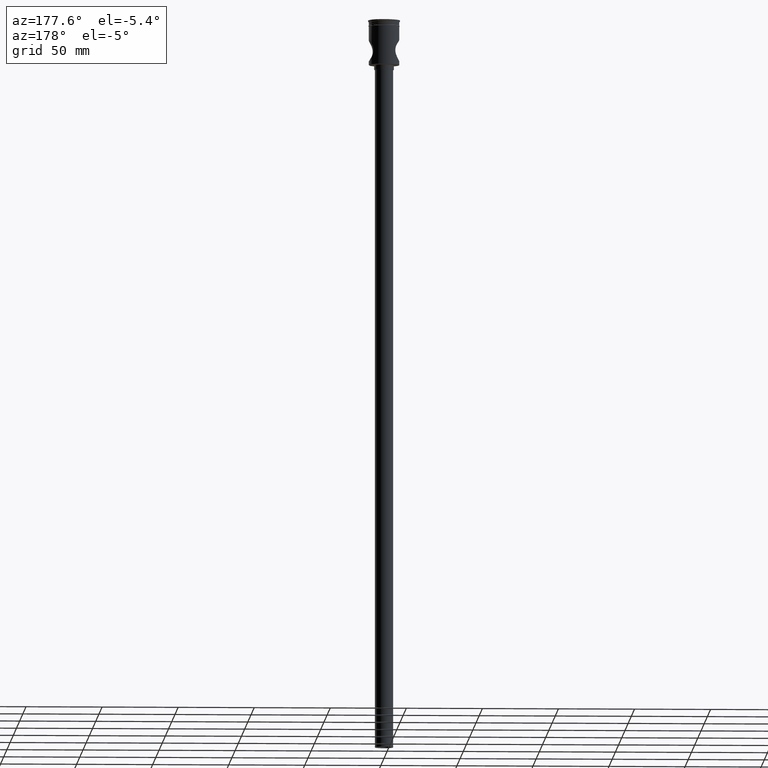
[diagram: clean part render]
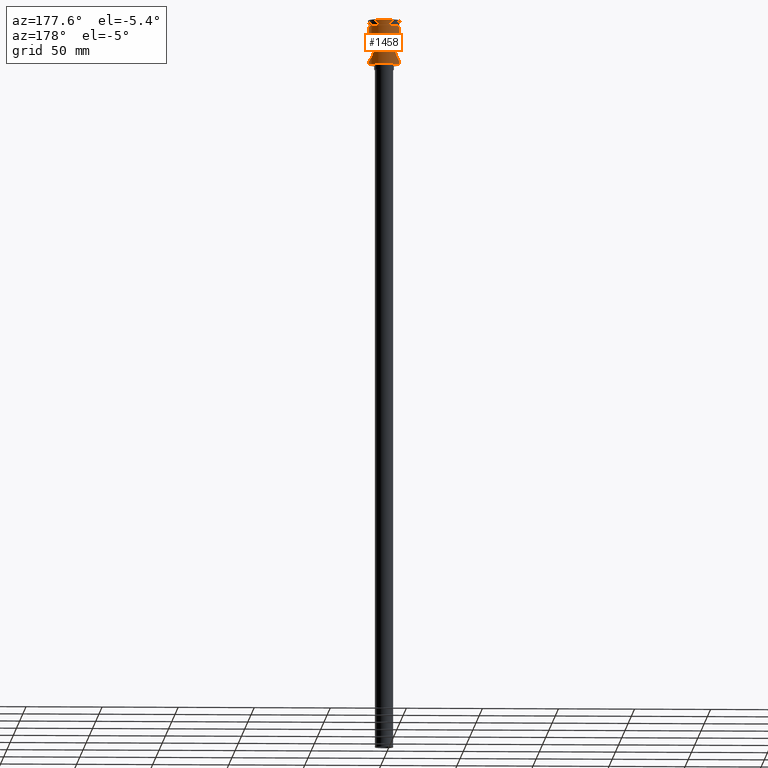
[diagram: same view with one face highlighted and labeled with its STEP entity id]
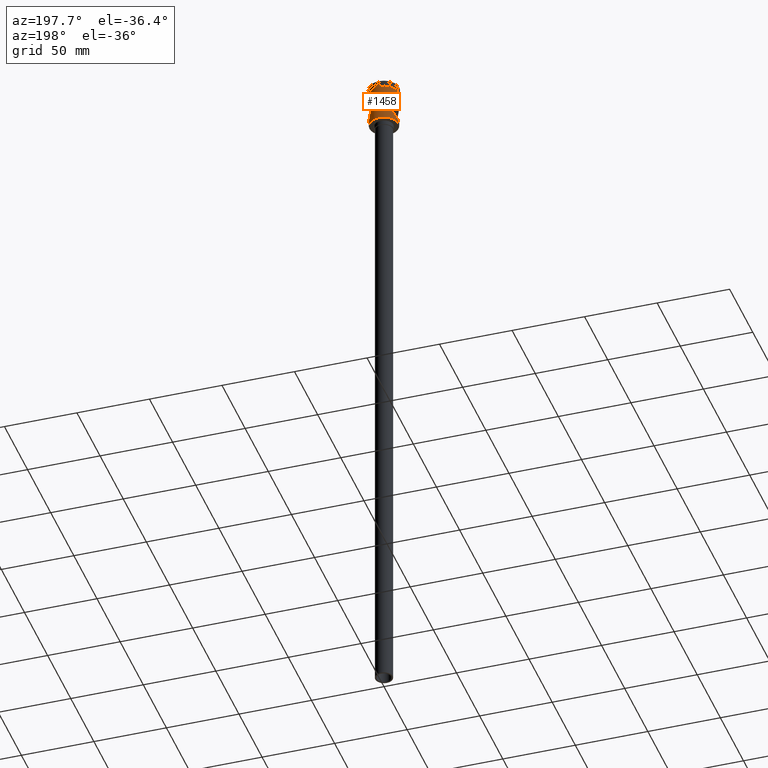
[diagram: same view with one face highlighted and labeled with its STEP entity id]
A machine part, auxiliary view. The second image highlights one B-rep face of the part: STEP entity #1458.
A second angle (auxiliary view) of the same face is appended — the face is thin or edge-on in the first view.
In plain terms, the highlighted cylindrical surface (edge-blend (fillet) strip) has radius 10 mm, axis along (-0, -0, 1).
Its self-contained STEP definition (entity closure, byte-faithful):
#10 = CARTESIAN_POINT ( 'NONE',  ( -9.999999999999994671, 1.224646799147352665E-15, -29.29999999999994387 ) ) ;
#15 = CARTESIAN_POINT ( 'NONE',  ( -9.999999999999996447, 0.000000000000000000, -27.00000000000000355 ) ) ;
#16 = CIRCLE ( 'NONE', #550, 9.999999999999998224 ) ;
#26 = CARTESIAN_POINT ( 'NONE',  ( 7.234464554488559962, 6.904114004842417884, -18.82145945963317857 ) ) ;
#51 = CARTESIAN_POINT ( 'NONE',  ( -9.991596185262174856, 0.4736682493084680701, -13.01198930438258117 ) ) ;
#58 = CARTESIAN_POINT ( 'NONE',  ( 9.485754788391535186, 3.172574074835096791, -13.75608760595409663 ) ) ;
#65 = CARTESIAN_POINT ( 'NONE',  ( 0.000000000000000000, 0.000000000000000000, 0.000000000000000000 ) ) ;
#81 = CARTESIAN_POINT ( 'NONE',  ( 9.999999999999994671, 0.000000000000000000, -29.29999999999994387 ) ) ;
#100 = CARTESIAN_POINT ( 'NONE',  ( -7.191763660842745765, 6.949507115151161152, -20.96152780032075569 ) ) ;
#108 = CARTESIAN_POINT ( 'NONE',  ( -7.796802139286405087, 6.263237125868982069, -16.86600156342442602 ) ) ;
#115 = EDGE_CURVE ( 'NONE', #1435, #184, #1477, .T. ) ;
#119 = CARTESIAN_POINT ( 'NONE',  ( -8.503943671969903306, 5.273689396165736731, -24.62422230267287304 ) ) ;
#126 = LINE ( 'NONE', #1098, #528 ) ;
#144 = CARTESIAN_POINT ( 'NONE',  ( 7.199668910925416832, 6.940164191266630311, -19.05657392165621289 ) ) ;
#161 = CARTESIAN_POINT ( 'NONE',  ( 9.999999999999996447, 0.2371603752032602208, -13.00000000000000711 ) ) ;
#184 = VERTEX_POINT ( 'NONE', #484 ) ;
#205 = DIRECTION ( 'NONE',  ( 1.000000000000000000, 0.000000000000000000, 0.000000000000000000 ) ) ;
#211 = CARTESIAN_POINT ( 'NONE',  ( -9.028965068475375944, 4.317457269925931485, -14.47181101200376574 ) ) ;
#229 = CARTESIAN_POINT ( 'NONE',  ( -9.999999999999994671, 1.229780025839397734E-15, -13.00000000000000355 ) ) ;
#236 = CARTESIAN_POINT ( 'NONE',  ( -7.574535355013248150, 6.529908853628296761, -22.53201108648862316 ) ) ;
#241 = CARTESIAN_POINT ( 'NONE',  ( -7.377383315084117932, 6.751497144694277530, -18.13709901651008494 ) ) ;
#252 = CARTESIAN_POINT ( 'NONE',  ( 9.965446655919850016, 0.9519641332654187327, -26.95088558220736630 ) ) ;
#260 = DIRECTION ( 'NONE',  ( 1.000000000000000000, 0.000000000000000000, 0.000000000000000000 ) ) ;
#267 = CARTESIAN_POINT ( 'NONE',  ( 7.573222039985391341, 6.531435267832768510, -22.52812481744788897 ) ) ;
#277 = CARTESIAN_POINT ( 'NONE',  ( 9.493823586986472662, 3.171854784083770085, -26.25704949909892250 ) ) ;
#295 = CARTESIAN_POINT ( 'NONE',  ( -9.957864273581446213, 0.9472565907286251141, -13.06030547907275796 ) ) ;
#315 = DIRECTION ( 'NONE',  ( -0.000000000000000000, -0.000000000000000000, 1.000000000000000000 ) ) ;
#333 = CARTESIAN_POINT ( 'NONE',  ( -7.322655419112948927, 6.810500286563438976, -18.36528137380275538 ) ) ;
#344 = VERTEX_POINT ( 'NONE', #608 ) ;
#345 = DIRECTION ( 'NONE',  ( -0.000000000000000000, -0.000000000000000000, 1.000000000000000000 ) ) ;
#346 = CARTESIAN_POINT ( 'NONE',  ( -9.675488818793542833, 2.536388918100093370, -26.52836702033825489 ) ) ;
#358 = CARTESIAN_POINT ( 'NONE',  ( -8.497179343882921287, 5.284524261307590010, -15.38819392766633243 ) ) ;
#362 = DIRECTION ( 'NONE',  ( -0.000000000000000000, -0.000000000000000000, 1.000000000000000000 ) ) ;
#364 = CARTESIAN_POINT ( 'NONE',  ( -7.326263957022342233, 6.806624336356017935, -21.65073055260620905 ) ) ;
#371 = CARTESIAN_POINT ( 'NONE',  ( 9.834047061028444503, 1.872933838790287631, -26.76115115372198616 ) ) ;
#380 = EDGE_CURVE ( 'NONE', #723, #399, #16, .T. ) ;
#381 = CARTESIAN_POINT ( 'NONE',  ( 7.503273641266415162, 6.611317046147628496, -22.31171733569519944 ) ) ;
#387 = CARTESIAN_POINT ( 'NONE',  ( 7.141373392009660925, 7.000056148497767694, -19.76373034873126144 ) ) ;
#397 = ORIENTED_EDGE ( 'NONE', *, *, #410, .F. ) ;
#399 = VERTEX_POINT ( 'NONE', #1422 ) ;
#405 = AXIS2_PLACEMENT_3D ( 'NONE', #1200, #1462, #731 ) ;
#410 = EDGE_CURVE ( 'NONE', #184, #344, #944, .T. ) ;
#421 = EDGE_CURVE ( 'NONE', #344, #723, #898, .T. ) ;
#422 = CARTESIAN_POINT ( 'NONE',  ( 9.832512437962645180, 1.881659858244550509, -13.24107387809922898 ) ) ;
#430 = CARTESIAN_POINT ( 'NONE',  ( 9.999999999999994671, -5.133226810943367768E-18, -13.00000000000000355 ) ) ;
#435 = DIRECTION ( 'NONE',  ( -0.000000000000000000, -0.000000000000000000, 1.000000000000000000 ) ) ;
#446 = CARTESIAN_POINT ( 'NONE',  ( 8.316470757484857756, 5.561257273121390732, -15.72607428983809008 ) ) ;
#453 = CARTESIAN_POINT ( 'NONE',  ( -7.569330506494653221, 6.535933251526299337, -17.48356472559870411 ) ) ;
#464 = CARTESIAN_POINT ( 'NONE',  ( -7.189382404875349408, 6.951946978929631094, -19.05590796920064633 ) ) ;
#479 = ORIENTED_EDGE ( 'NONE', *, *, #421, .F. ) ;
#483 = CARTESIAN_POINT ( 'NONE',  ( -7.505468983612143319, 6.608824641700789648, -22.31875249157933183 ) ) ;
#484 = CARTESIAN_POINT ( 'NONE',  ( 9.999999999999994671, 0.000000000000000000, -27.00000000000001066 ) ) ;
#502 = B_SPLINE_CURVE_WITH_KNOTS ( 'NONE', 3,
 ( #906, #1370, #51, #295, #768, #1385, #1068, #712, #955, #211, #705, #358, #589, #686, #1529, #108, #1391, #453, #1415, #241, #333, #464, #1188, #828, #100, #364, #584, #483, #236, #1045, #945, #819, #835, #718, #119, #600, #1398, #804, #1295, #346, #1286, #1055, #1300, #1496, #1184, #1515 ),
 .UNSPECIFIED., .F., .F.,
 ( 4, 2, 2, 2, 2, 2, 2, 2, 2, 2, 2, 2, 2, 2, 2, 2, 2, 2, 2, 2, 2, 2, 4 ),
 ( 0.02273717132267112292, 0.02344677004960169994, 0.02415636877653227696, 0.02557556623039343099, 0.02699476368425458156, 0.02841396113811573559, 0.02983315859197688963, 0.03054275731890747012, 0.03125235604583804366, 0.03196195477276862762, 0.03267155349969920464, 0.03409075095356035867, 0.03550994840742151271, 0.03621954713435208278, 0.03692914586128265980, 0.03763874458821323682, 0.03834834331514381384, 0.03976754076900496787, 0.04118673822286612884, 0.04260593567672728288, 0.04331553440365785990, 0.04402513313058842997, 0.04544433058444957707 ),
 .UNSPECIFIED. ) ;
#521 = ORIENTED_EDGE ( 'NONE', *, *, #380, .F. ) ;
#524 = VECTOR ( 'NONE', #435, 1000.000000000000000 ) ;
#528 = VECTOR ( 'NONE', #362, 1000.000000000000000 ) ;
#535 = CYLINDRICAL_SURFACE ( 'NONE', #1219, 9.999999999999994671 ) ;
#541 = CARTESIAN_POINT ( 'NONE',  ( 7.967226261725709691, 6.044961550507583325, -16.46329765270407108 ) ) ;
#550 = AXIS2_PLACEMENT_3D ( 'NONE', #1340, #633, #260 ) ;
#556 = CARTESIAN_POINT ( 'NONE',  ( 8.053311715077979827, 5.930176009131115755, -16.27420902905398137 ) ) ;
#558 = EDGE_CURVE ( 'NONE', #1281, #620, #1514, .T. ) ;
#584 = CARTESIAN_POINT ( 'NONE',  ( -7.381411116935110428, 6.747102913955162151, -21.87877048370861743 ) ) ;
#589 = CARTESIAN_POINT ( 'NONE',  ( -8.315544161946238688, 5.562748588078728851, -15.72768175892419862 ) ) ;
#600 = CARTESIAN_POINT ( 'NONE',  ( -8.860185483737918588, 4.650373212660217526, -25.25064384002004658 ) ) ;
#608 = CARTESIAN_POINT ( 'NONE',  ( 9.999999999999994671, -5.133226810943367768E-18, -13.00000000000000355 ) ) ;
#616 = CARTESIAN_POINT ( 'NONE',  ( 7.201179731105407100, 6.938600208746065867, -20.95536877560809330 ) ) ;
#620 = VERTEX_POINT ( 'NONE', #15 ) ;
#633 = DIRECTION ( 'NONE',  ( -0.000000000000000000, -0.000000000000000000, 1.000000000000000000 ) ) ;
#664 = CARTESIAN_POINT ( 'NONE',  ( 7.801002067758135539, 6.258004569467825462, -16.85560777748649386 ) ) ;
#674 = CARTESIAN_POINT ( 'NONE',  ( 9.999999999999994671, 0.000000000000000000, 0.000000000000000000 ) ) ;
#686 = CARTESIAN_POINT ( 'NONE',  ( -8.050554706296177088, 5.933943087171876130, -16.28011583648020988 ) ) ;
#705 = CARTESIAN_POINT ( 'NONE',  ( -8.853430568094132980, 4.663155653245508070, -14.76073180007297125 ) ) ;
#712 = CARTESIAN_POINT ( 'NONE',  ( -9.492393824703034610, 3.176669941205828795, -13.74509325342724253 ) ) ;
#718 = CARTESIAN_POINT ( 'NONE',  ( -8.322069302564289117, 5.553051878775062455, -24.28499264081531095 ) ) ;
#723 = VERTEX_POINT ( 'NONE', #874 ) ;
#731 = DIRECTION ( 'NONE',  ( -1.000000000000000000, 0.000000000000000000, 0.000000000000000000 ) ) ;
#738 = CARTESIAN_POINT ( 'NONE',  ( 7.325106434378655607, 6.807865243658028476, -21.64544578927129237 ) ) ;
#742 = ORIENTED_EDGE ( 'NONE', *, *, #115, .F. ) ;
#744 = CARTESIAN_POINT ( 'NONE',  ( 7.153235015771536531, 6.988014041043824953, -19.52714534028610061 ) ) ;
#753 = CARTESIAN_POINT ( 'NONE',  ( 8.315624236750037923, 5.562535070965512141, -24.27231501587448292 ) ) ;
#762 = CARTESIAN_POINT ( 'NONE',  ( 7.796463043157196182, 6.266459839169562507, -23.15209899686185224 ) ) ;
#767 = CARTESIAN_POINT ( 'NONE',  ( 7.720495804876724044, 6.356685689900112735, -17.05985571267803991 ) ) ;
#768 = CARTESIAN_POINT ( 'NONE',  ( -9.932287513067288742, 1.185065133237715562, -13.09699146176595974 ) ) ;
#804 = CARTESIAN_POINT ( 'NONE',  ( -9.351609315107900500, 3.564938189428367377, -26.04074502495870647 ) ) ;
#819 = CARTESIAN_POINT ( 'NONE',  ( -7.969012120586809189, 6.042611853496009822, -23.54072391938827735 ) ) ;
#828 = CARTESIAN_POINT ( 'NONE',  ( -7.141989287018506438, 6.999427809131203659, -20.49012689816927946 ) ) ;
#835 = CARTESIAN_POINT ( 'NONE',  ( -8.056358060451357161, 5.926078000082595665, -23.73242365119358155 ) ) ;
#842 = CARTESIAN_POINT ( 'NONE',  ( 9.029024665842507957, 4.317593744654971033, -25.52832831042054806 ) ) ;
#847 = CIRCLE ( 'NONE', #405, 9.999999999999994671 ) ;
#852 = CARTESIAN_POINT ( 'NONE',  ( 7.379165411094851912, 6.749558967525724817, -21.87002777218119931 ) ) ;
#859 = CARTESIAN_POINT ( 'NONE',  ( 8.856372138511654057, 4.657577678256724418, -25.24421500772974269 ) ) ;
#874 = CARTESIAN_POINT ( 'NONE',  ( 9.999999999999998224, 0.000000000000000000, -3.999999999999996447 ) ) ;
#890 = CARTESIAN_POINT ( 'NONE',  ( 9.991574020215791663, 0.4743472386555617204, -13.01202085301403777 ) ) ;
#898 = LINE ( 'NONE', #1349, #1404 ) ;
#906 = CARTESIAN_POINT ( 'NONE',  ( -9.999999999999994671, 1.229780025839397734E-15, -13.00000000000000355 ) ) ;
#913 = CARTESIAN_POINT ( 'NONE',  ( 8.857763224790600631, 4.655166966848104160, -14.75332674821394185 ) ) ;
#928 = EDGE_CURVE ( 'NONE', #1489, #399, #126, .T. ) ;
#942 = ORIENTED_EDGE ( 'NONE', *, *, #558, .T. ) ;
#944 = B_SPLINE_CURVE_WITH_KNOTS ( 'NONE', 3,
 ( #1308, #1213, #252, #371, #1222, #277, #1106, #842, #859, #982, #753, #1430, #762, #267, #381, #852, #738, #1207, #616, #1091, #976, #387, #744, #144, #26, #1253, #1483, #767, #664, #541, #556, #446, #1490, #913, #1132, #1114, #1023, #58, #1015, #1474, #422, #1030, #1228, #890, #161, #430 ),
 .UNSPECIFIED., .F., .F.,
 ( 4, 2, 2, 2, 2, 2, 2, 2, 2, 2, 2, 2, 2, 2, 2, 2, 2, 2, 2, 2, 2, 2, 4 ),
 ( 0.000000000000000000, 0.001421073207666945183, 0.002842146415333890366, 0.004263219623000837066, 0.005684292830667782466, 0.007105366038334726998, 0.008526439246001672398, 0.009236975849835149868, 0.009947512453668627339, 0.01065804905750210654, 0.01136858566133558401, 0.01207912226516906322, 0.01278965886900253895, 0.01421073207666949390, 0.01492126868050296790, 0.01563180528433644190, 0.01705287849200338296, 0.01847395169967032749, 0.01918448830350380149, 0.01989502490733727202, 0.02131609811500421309, 0.02202663471883768362, 0.02273717132267115415 ),
 .UNSPECIFIED. ) ;
#945 = CARTESIAN_POINT ( 'NONE',  ( -7.802583678074495488, 6.256037095215747357, -23.14831442975813403 ) ) ;
#955 = CARTESIAN_POINT ( 'NONE',  ( -9.347318963212909892, 3.576349491498996613, -13.96584429441086250 ) ) ;
#976 = CARTESIAN_POINT ( 'NONE',  ( 7.141483849871202771, 6.999943458932625262, -20.23958506209359243 ) ) ;
#982 = CARTESIAN_POINT ( 'NONE',  ( 8.500359578522527215, 5.279417043634754947, -24.61763755135371312 ) ) ;
#1008 = FACE_OUTER_BOUND ( 'NONE', #1319, .T. ) ;
#1015 = CARTESIAN_POINT ( 'NONE',  ( 9.553141715981873006, 2.964211287661889571, -13.65436461758242181 ) ) ;
#1023 = CARTESIAN_POINT ( 'NONE',  ( 9.343068346694408888, 3.570972421456893642, -13.97506645596566877 ) ) ;
#1030 = CARTESIAN_POINT ( 'NONE',  ( 9.932071413309429886, 1.186883990593142979, -13.09730212679606964 ) ) ;
#1045 = CARTESIAN_POINT ( 'NONE',  ( -7.723089038241832682, 6.353518016691833914, -22.94679462982522722 ) ) ;
#1055 = CARTESIAN_POINT ( 'NONE',  ( -9.826638545464753349, 1.868062541291059642, -26.75021854738501759 ) ) ;
#1068 = CARTESIAN_POINT ( 'NONE',  ( -9.736384942666980180, 2.323699784143521185, -13.38067151163704871 ) ) ;
#1079 = ORIENTED_EDGE ( 'NONE', *, *, #1485, .F. ) ;
#1091 = CARTESIAN_POINT ( 'NONE',  ( 7.153700441637879770, 6.987541224765998926, -20.48080140017840733 ) ) ;
#1094 = VECTOR ( 'NONE', #345, 1000.000000000000000 ) ;
#1098 = CARTESIAN_POINT ( 'NONE',  ( -9.999999999999994671, 1.224646799147352665E-15, 0.000000000000000000 ) ) ;
#1106 = CARTESIAN_POINT ( 'NONE',  ( 9.349377247001186220, 3.571280898155820172, -26.03738208151085587 ) ) ;
#1114 = CARTESIAN_POINT ( 'NONE',  ( 9.267396788860448709, 3.762388530127553476, -14.09286872329777474 ) ) ;
#1132 = CARTESIAN_POINT ( 'NONE',  ( 9.029975738911995009, 4.315133941133939999, -14.47019995321800323 ) ) ;
#1184 = CARTESIAN_POINT ( 'NONE',  ( -9.999999999999998224, 0.4807969081117817733, -27.00000000000001066 ) ) ;
#1188 = CARTESIAN_POINT ( 'NONE',  ( -7.140877080678154520, 7.000562488098499792, -19.52635574343557323 ) ) ;
#1200 = CARTESIAN_POINT ( 'NONE',  ( 0.000000000000000000, 0.000000000000000000, -29.29999999999994387 ) ) ;
#1207 = CARTESIAN_POINT ( 'NONE',  ( 7.236111701560244747, 6.902383710959966834, -21.18811620976742915 ) ) ;
#1213 = CARTESIAN_POINT ( 'NONE',  ( 9.999999999999994671, 0.4814323775651360160, -27.00000000000000711 ) ) ;
#1219 = AXIS2_PLACEMENT_3D ( 'NONE', #65, #315, #205 ) ;
#1220 = EDGE_CURVE ( 'NONE', #1435, #1281, #847, .T. ) ;
#1222 = CARTESIAN_POINT ( 'NONE',  ( 9.735585976469911529, 2.326309258653758594, -26.61812786508321693 ) ) ;
#1228 = CARTESIAN_POINT ( 'NONE',  ( 9.957729828106900882, 0.9487746701410815220, -13.06049825370512707 ) ) ;
#1233 = DIRECTION ( 'NONE',  ( -0.000000000000000000, -0.000000000000000000, 1.000000000000000000 ) ) ;
#1253 = CARTESIAN_POINT ( 'NONE',  ( 7.368839572955796058, 6.761454996973014886, -18.12764364703029329 ) ) ;
#1281 = VERTEX_POINT ( 'NONE', #10 ) ;
#1286 = CARTESIAN_POINT ( 'NONE',  ( -9.730782946235683184, 2.316105786581691639, -26.60989879506474054 ) ) ;
#1295 = CARTESIAN_POINT ( 'NONE',  ( -9.494221684495640190, 3.170672659151728912, -26.25765240908376441 ) ) ;
#1300 = CARTESIAN_POINT ( 'NONE',  ( -9.867116120145130509, 1.641278058953928198, -26.80890176429204885 ) ) ;
#1308 = CARTESIAN_POINT ( 'NONE',  ( 9.999999999999994671, 0.000000000000000000, -27.00000000000001066 ) ) ;
#1319 = EDGE_LOOP ( 'NONE', ( #1334, #942, #1079, #1352, #521, #479, #397, #742 ) ) ;
#1334 = ORIENTED_EDGE ( 'NONE', *, *, #1220, .T. ) ;
#1340 = CARTESIAN_POINT ( 'NONE',  ( 0.000000000000000000, 0.000000000000000000, -3.999999999999996447 ) ) ;
#1349 = CARTESIAN_POINT ( 'NONE',  ( 9.999999999999994671, 0.000000000000000000, 0.000000000000000000 ) ) ;
#1352 = ORIENTED_EDGE ( 'NONE', *, *, #928, .T. ) ;
#1370 = CARTESIAN_POINT ( 'NONE',  ( -9.999999999999992895, 0.2368473339933030442, -13.00000000000000355 ) ) ;
#1385 = CARTESIAN_POINT ( 'NONE',  ( -9.832878540591766026, 1.879722866531852610, -13.24054240779419089 ) ) ;
#1390 = CARTESIAN_POINT ( 'NONE',  ( -9.999999999999994671, 1.224646799147352665E-15, 0.000000000000000000 ) ) ;
#1391 = CARTESIAN_POINT ( 'NONE',  ( -7.717429328536875133, 6.360383034377457001, -17.06803860621227287 ) ) ;
#1398 = CARTESIAN_POINT ( 'NONE',  ( -9.035512705743391493, 4.303590503429356673, -25.53881697926559013 ) ) ;
#1404 = VECTOR ( 'NONE', #1233, 1000.000000000000000 ) ;
#1415 = CARTESIAN_POINT ( 'NONE',  ( -7.500597748671954612, 6.614342876288898054, -17.69704926583546722 ) ) ;
#1422 = CARTESIAN_POINT ( 'NONE',  ( -10.00000000000000000, 1.224646799147353256E-15, -3.999999999999996447 ) ) ;
#1430 = CARTESIAN_POINT ( 'NONE',  ( 7.964400624432384390, 6.054727537725132613, -23.54044438658495508 ) ) ;
#1435 = VERTEX_POINT ( 'NONE', #81 ) ;
#1458 = ADVANCED_FACE ( 'NONE', ( #1008 ), #535, .T. ) ;
#1462 = DIRECTION ( 'NONE',  ( -0.000000000000000000, -0.000000000000000000, 1.000000000000000000 ) ) ;
#1474 = CARTESIAN_POINT ( 'NONE',  ( 9.735967975428478027, 2.325336189795355502, -13.38128717480536345 ) ) ;
#1477 = LINE ( 'NONE', #674, #524 ) ;
#1483 = CARTESIAN_POINT ( 'NONE',  ( 7.495754172928653425, 6.623269820279323206, -17.68917710553390421 ) ) ;
#1485 = EDGE_CURVE ( 'NONE', #1489, #620, #502, .T. ) ;
#1489 = VERTEX_POINT ( 'NONE', #229 ) ;
#1490 = CARTESIAN_POINT ( 'NONE',  ( 8.498707828545162712, 5.282283036785497821, -15.38527946463393370 ) ) ;
#1496 = CARTESIAN_POINT ( 'NONE',  ( -9.965325511264431668, 0.9525671816038204787, -26.95070955909274346 ) ) ;
#1514 = LINE ( 'NONE', #1390, #1094 ) ;
#1515 = CARTESIAN_POINT ( 'NONE',  ( -9.999999999999996447, 0.000000000000000000, -27.00000000000000355 ) ) ;
#1529 = CARTESIAN_POINT ( 'NONE',  ( -7.963207023572478782, 6.050255927956311730, -16.47232531239752262 ) ) ;